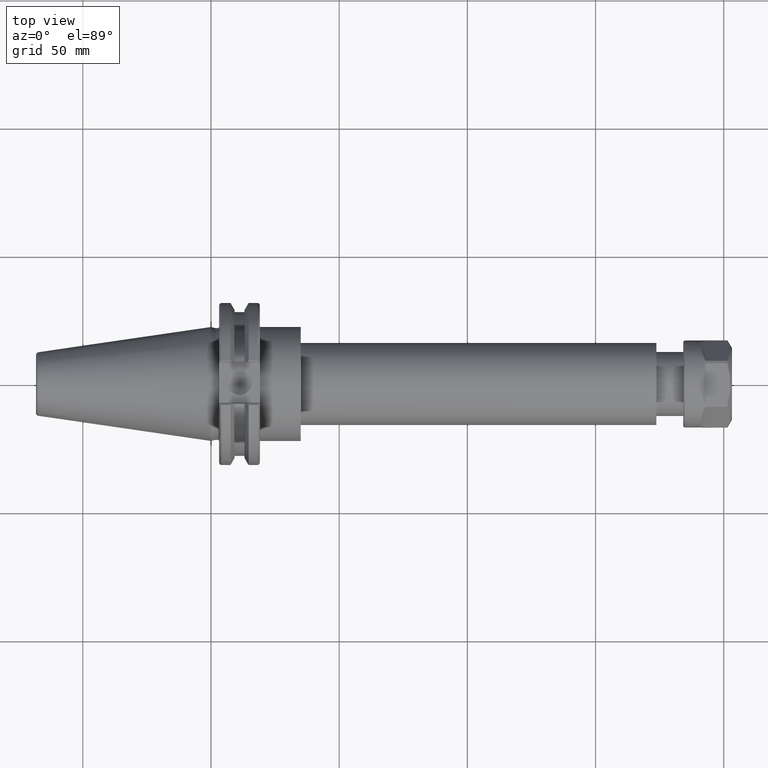
[diagram: clean part render]
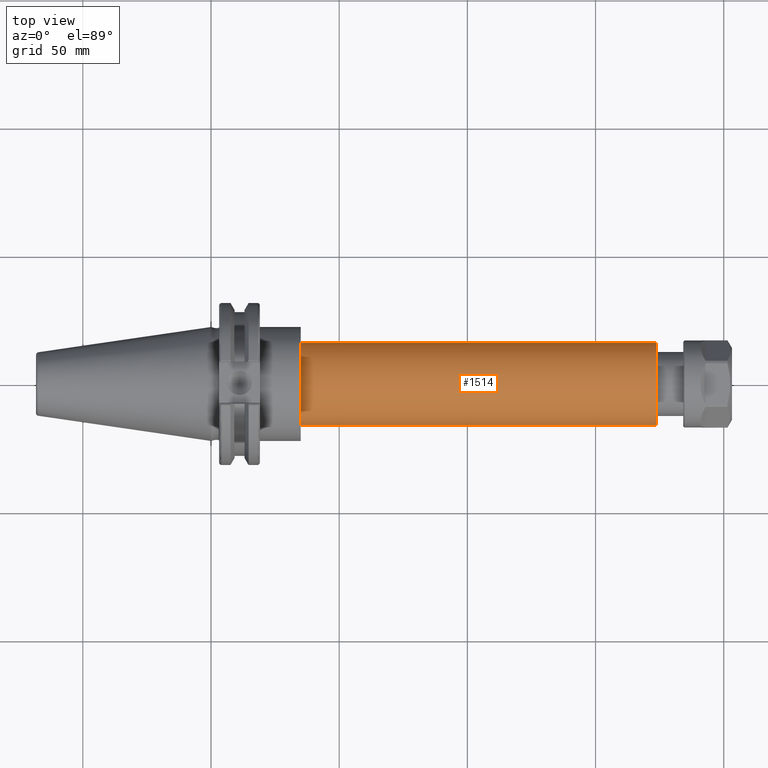
[diagram: same view with one face highlighted and labeled with its STEP entity id]
A machine part, top view. The second image highlights one B-rep face of the part: STEP entity #1514.
In plain terms, the highlighted cylindrical surface (bore or boss wall) has radius 16 mm, axis along (1, 0, 0).
Its self-contained STEP definition (entity closure, byte-faithful):
#201=FACE_OUTER_BOUND('',#295,.T.);
#295=EDGE_LOOP('',(#1070,#1071,#1072,#1073));
#399=LINE('',#2355,#499);
#499=VECTOR('',#1904,16.);
#603=CIRCLE('',#1691,16.);
#604=CIRCLE('',#1693,16.);
#680=VERTEX_POINT('',#2350);
#681=VERTEX_POINT('',#2353);
#833=EDGE_CURVE('',#680,#680,#603,.T.);
#834=EDGE_CURVE('',#681,#681,#604,.T.);
#835=EDGE_CURVE('',#681,#680,#399,.T.);
#1070=ORIENTED_EDGE('',*,*,#834,.F.);
#1071=ORIENTED_EDGE('',*,*,#835,.T.);
#1072=ORIENTED_EDGE('',*,*,#833,.T.);
#1073=ORIENTED_EDGE('',*,*,#835,.F.);
#1488=CYLINDRICAL_SURFACE('',#1692,16.);
#1514=ADVANCED_FACE('',(#201),#1488,.T.);
#1691=AXIS2_PLACEMENT_3D('',#2351,#1898,#1899);
#1692=AXIS2_PLACEMENT_3D('',#2352,#1900,#1901);
#1693=AXIS2_PLACEMENT_3D('',#2354,#1902,#1903);
#1898=DIRECTION('center_axis',(1.,0.,0.));
#1899=DIRECTION('ref_axis',(0.,0.,-1.));
#1900=DIRECTION('center_axis',(1.,0.,0.));
#1901=DIRECTION('ref_axis',(0.,1.,0.));
#1902=DIRECTION('center_axis',(1.,0.,0.));
#1903=DIRECTION('ref_axis',(0.,0.,-1.));
#1904=DIRECTION('',(-1.,0.,0.));
#2350=CARTESIAN_POINT('',(35.,-16.,-1.95943487863577E-15));
#2351=CARTESIAN_POINT('Origin',(35.,0.,0.));
#2352=CARTESIAN_POINT('Origin',(104.35,0.,0.));
#2353=CARTESIAN_POINT('',(173.7,-16.,-1.95943487863577E-15));
#2354=CARTESIAN_POINT('Origin',(173.7,0.,0.));
#2355=CARTESIAN_POINT('',(104.35,-16.,-1.95943487863577E-15));